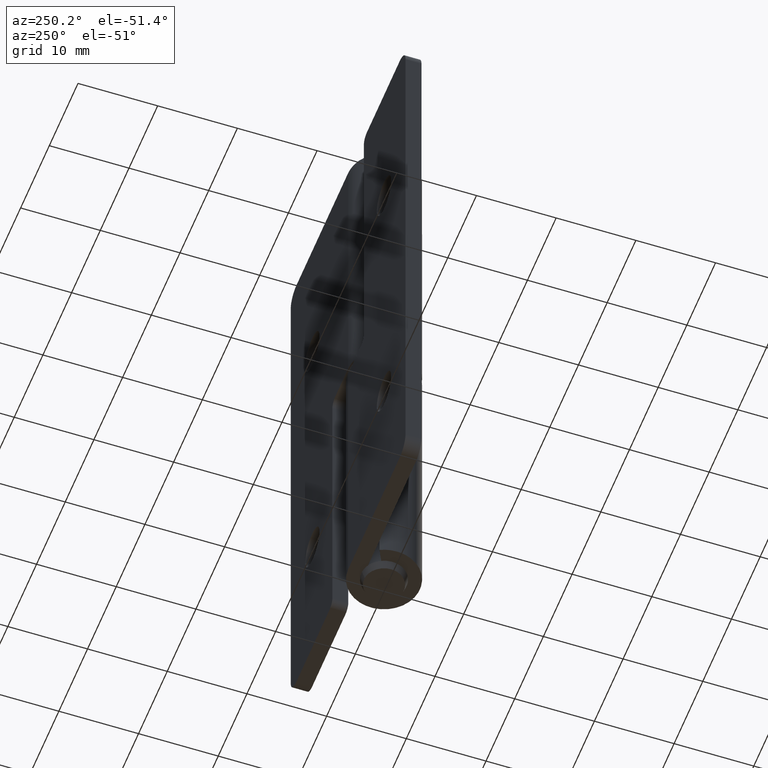
[diagram: clean part render]
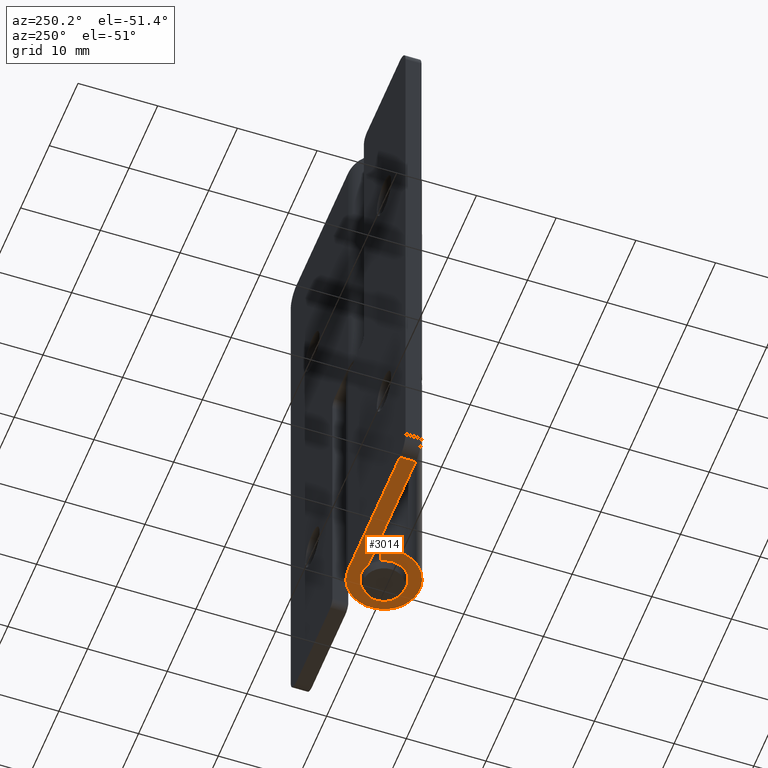
[diagram: same view with one face highlighted and labeled with its STEP entity id]
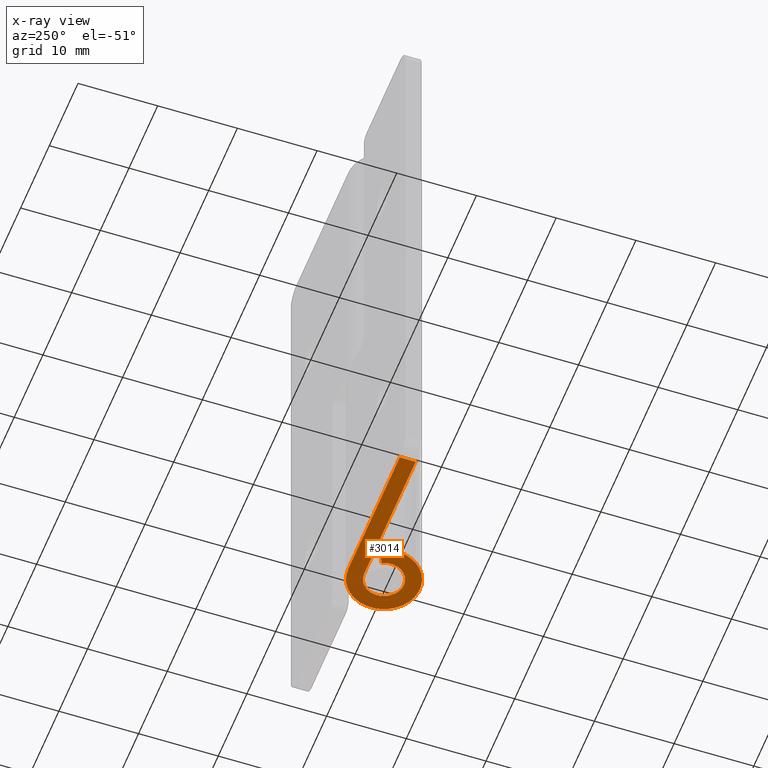
[diagram: x-ray of the same camera — body ghosted, the highlighted face saturated]
A machine part, auxiliary view. The second image highlights one B-rep face of the part: STEP entity #3014.
The next image is the same camera in x-ray: the body ghosted, the highlighted face saturated — about 0% of this face is hidden behind the body in this view.
In plain terms, the highlighted face is a freeform B-spline surface patch.
Its self-contained STEP definition (entity closure, byte-faithful):
#2577=CARTESIAN_POINT('',(-3.115169E-011,4.500000000000060,0.0));
#2578=VERTEX_POINT('',#2577);
#2584=CARTESIAN_POINT('',(-18.000000000031150,4.499999999994159,0.0));
#2585=VERTEX_POINT('',#2584);
#2586=CARTESIAN_POINT('',(-3.115169E-011,4.500000000000060,0.0));
#2587=CARTESIAN_POINT('',(-18.000000000031150,4.499999999994159,0.0));
#2588=QUASI_UNIFORM_CURVE('',1,(#2586,#2587),.UNSPECIFIED.,.F.,.U.);
#2589=EDGE_CURVE('',#2578,#2585,#2588,.T.);
#2791=CARTESIAN_POINT('',(-18.000000000024752,2.499999999941865,0.0));
#2792=VERTEX_POINT('',#2791);
#2793=CARTESIAN_POINT('',(-18.000000000024752,2.499999999941865,0.0));
#2794=CARTESIAN_POINT('',(-18.000000000031150,4.499999999994159,0.0));
#2795=QUASI_UNIFORM_CURVE('',1,(#2793,#2794),.UNSPECIFIED.,.F.,.U.);
#2796=EDGE_CURVE('',#2792,#2585,#2795,.T.);
#2928=CARTESIAN_POINT('',(-19.123874113145590,-4.949484158612932,0.0));
#2929=CARTESIAN_POINT('',(5.623857834121212,-4.949484158612932,0.0));
#2930=CARTESIAN_POINT('',(-19.123874113145590,4.949547092386588,0.0));
#2931=CARTESIAN_POINT('',(5.623857834121212,4.949547092386588,0.0));
#2932=B_SPLINE_SURFACE_WITH_KNOTS('',1,1,((#2928,#2930),(#2929,#2931)),.UNSPECIFIED.,.F.,.F.,.U.,(2,2),(2,2),(0.0,24.747731947266811),(0.0,9.899031250999521),.UNSPECIFIED.);
#2933=CARTESIAN_POINT('',(-2.491163E-011,2.500000000000075,0.0));
#2934=VERTEX_POINT('',#2933);
#2935=CARTESIAN_POINT('',(-18.000000000024752,2.499999999941865,0.0));
#2936=CARTESIAN_POINT('',(-2.491163E-011,2.500000000000075,0.0));
#2937=QUASI_UNIFORM_CURVE('',1,(#2935,#2936),.UNSPECIFIED.,.F.,.U.);
#2938=EDGE_CURVE('',#2792,#2934,#2937,.T.);
#2939=ORIENTED_EDGE('',*,*,#2938,.F.);
#2940=ORIENTED_EDGE('',*,*,#2796,.T.);
#2941=ORIENTED_EDGE('',*,*,#2589,.F.);
#2942=CARTESIAN_POINT('',(-4.031128874172655,1.999999999986900,0.0));
#2943=VERTEX_POINT('',#2942);
#2944=CARTESIAN_POINT('',(-3.115169E-011,4.500000000000060,0.0));
#2945=CARTESIAN_POINT('',(0.242467662085181,4.500011012660295,0.0));
#2946=CARTESIAN_POINT('',(0.757743461527956,4.458275352194862,0.0));
#2947=CARTESIAN_POINT('',(1.420806516539395,4.287132903764576,0.0));
#2948=CARTESIAN_POINT('',(2.106136790064912,3.998137125022928,0.0));
#2949=CARTESIAN_POINT('',(2.701400612902546,3.628503069355748,0.0));
#2950=CARTESIAN_POINT('',(3.311628580784364,3.079643314026739,0.0));
#2951=CARTESIAN_POINT('',(3.754044527466332,2.517223621768803,0.0));
#2952=CARTESIAN_POINT('',(4.136053835076022,1.826004661415456,0.0));
#2953=CARTESIAN_POINT('',(4.388765576510497,1.107531024632267,0.0));
#2954=CARTESIAN_POINT('',(4.505625739479836,0.340624640913647,0.0));
#2955=CARTESIAN_POINT('',(4.501440131049301,-0.449421665427243,0.0));
#2956=CARTESIAN_POINT('',(4.341375575137127,-1.318758566845548,0.0));
#2957=CARTESIAN_POINT('',(3.945132709154171,-2.244557548913360,0.0));
#2958=CARTESIAN_POINT('',(3.305745776586506,-3.118308956496185,0.0));
#2959=CARTESIAN_POINT('',(2.543626651526900,-3.755783373612471,0.0));
#2960=CARTESIAN_POINT('',(1.666283319116001,-4.211717265103769,0.0));
#2961=CARTESIAN_POINT('',(0.846187183754874,-4.449619037017613,0.0));
#2962=CARTESIAN_POINT('',(-0.154126288680774,-4.535251867695420,0.0));
#2963=CARTESIAN_POINT('',(-1.154227573525186,-4.397418152519082,0.0));
#2964=CARTESIAN_POINT('',(-2.115440992979691,-4.008376082320058,0.0));
#2965=CARTESIAN_POINT('',(-2.898954194674774,-3.481924601904446,0.0));
#2966=CARTESIAN_POINT('',(-3.593658187351620,-2.775696040897544,0.0));
#2967=CARTESIAN_POINT('',(-4.131973189823101,-1.887276941452556,0.0));
#2968=CARTESIAN_POINT('',(-4.436327650903636,-0.927954508095639,0.0));
#2969=CARTESIAN_POINT('',(-4.532282497225771,0.026422157626195,0.0));
#2970=CARTESIAN_POINT('',(-4.426488103987710,1.011942384028578,0.0));
#2971=CARTESIAN_POINT('',(-4.192853736485836,1.674204847243373,0.0));
#2972=CARTESIAN_POINT('',(-4.031128874172655,1.999999999986900,0.0));
#2973=B_SPLINE_CURVE_WITH_KNOTS('',3,(#2944,#2945,#2946,#2947,#2948,#2949,#2950,#2951,#2952,#2953,#2954,#2955,#2956,#2957,#2958,#2959,#2960,#2961,#2962,#2963,#2964,#2965,#2966,#2967,#2968,#2969,#2970,#2971,#2972),.UNSPECIFIED.,.F.,.U.,(4,1,1,1,1,1,1,1,1,1,1,1,1,1,1,1,1,1,1,1,1,1,1,1,1,1,4),(0.000000371167509,0.727407738094090,1.545828306880420,2.045934228842810,2.955260493963294,3.637252559762516,4.501089919527395,5.092151789645438,6.001403782606559,6.774358088435193,7.410860481444496,8.365649352529589,9.411365325425454,10.411613528465571,11.593747744769070,12.366608824785160,13.366841943972410,14.139768931435411,15.367345887126801,16.367590960154320,17.231458102187599,18.186193889512541,19.322836241028892,20.323083923822129,21.186930951431290,22.187176023440859,23.278342379592221),.UNSPECIFIED.);
#2974=EDGE_CURVE('',#2578,#2943,#2973,.T.);
#2975=ORIENTED_EDGE('',*,*,#2974,.T.);
#2976=CARTESIAN_POINT('',(-2.239516041214535,1.111111111103914,0.0));
#2977=VERTEX_POINT('',#2976);
#2978=CARTESIAN_POINT('',(-2.239516041214535,1.111111111103914,0.0));
#2979=CARTESIAN_POINT('',(-4.031128874172655,1.999999999986900,0.0));
#2980=QUASI_UNIFORM_CURVE('',1,(#2978,#2979),.UNSPECIFIED.,.F.,.U.);
#2981=EDGE_CURVE('',#2977,#2943,#2980,.T.);
#2982=ORIENTED_EDGE('',*,*,#2981,.F.);
#2983=CARTESIAN_POINT('',(-2.491163E-011,2.500000000000075,0.0));
#2984=CARTESIAN_POINT('',(0.319989658641525,2.500308341894099,0.0));
#2985=CARTESIAN_POINT('',(0.808067264582563,2.404952418155411,0.0));
#2986=CARTESIAN_POINT('',(1.332109745669958,2.128665244653801,0.0));
#2987=CARTESIAN_POINT('',(1.682201157987785,1.864405769539111,0.0));
#2988=CARTESIAN_POINT('',(1.962778118910932,1.570676428175734,0.0));
#2989=CARTESIAN_POINT('',(2.268701223502454,1.104584748021082,0.0));
#2990=CARTESIAN_POINT('',(2.466334870088323,0.560270179402369,0.0));
#2991=CARTESIAN_POINT('',(2.518376348434521,-0.047472590576219,0.0));
#2992=CARTESIAN_POINT('',(2.443681460591479,-0.635153346539001,0.0));
#2993=CARTESIAN_POINT('',(2.222791693732016,-1.206211570513214,0.0));
#2994=CARTESIAN_POINT('',(1.882148417483374,-1.671640390756258,0.0));
#2995=CARTESIAN_POINT('',(1.531833397008682,-1.989500553361884,0.0));
#2996=CARTESIAN_POINT('',(1.134974834244684,-2.246902066288806,0.0));
#2997=CARTESIAN_POINT('',(0.582187408483915,-2.463509153217046,0.0));
#2998=CARTESIAN_POINT('',(-0.061818619010682,-2.528421247259660,0.0));
#2999=CARTESIAN_POINT('',(-0.663779223811063,-2.429795287817492,0.0));
#3000=CARTESIAN_POINT('',(-1.120607798518759,-2.250284362921641,0.0));
#3001=CARTESIAN_POINT('',(-1.579750730372843,-1.964891551721949,0.0));
#3002=CARTESIAN_POINT('',(-1.991457504530337,-1.558829990713069,0.0));
#3003=CARTESIAN_POINT('',(-2.291321954086384,-1.046413448551118,0.0));
#3004=CARTESIAN_POINT('',(-2.439060634963018,-0.596594966201494,0.0));
#3005=CARTESIAN_POINT('',(-2.507150904832518,-0.162990509200545,0.0));
#3006=CARTESIAN_POINT('',(-2.498013508739861,0.412407889357047,0.0));
#3007=CARTESIAN_POINT('',(-2.366931053165393,0.854743414436030,0.0));
#3008=CARTESIAN_POINT('',(-2.239516041214535,1.111111111103914,0.0));
#3009=B_SPLINE_CURVE_WITH_KNOTS('',3,(#2983,#2984,#2985,#2986,#2987,#2988,#2989,#2990,#2991,#2992,#2993,#2994,#2995,#2996,#2997,#2998,#2999,#3000,#3001,#3002,#3003,#3004,#3005,#3006,#3007,#3008),.UNSPECIFIED.,.F.,.U.,(4,1,1,1,1,1,1,1,1,1,1,1,1,1,1,1,1,1,1,1,1,1,1,4),(0.000000192404073,0.959820342445880,1.465015098169973,1.768131788343249,2.273327298661529,2.677478931575449,3.435185459173338,3.990890064806875,4.496078906530363,5.203354350616414,5.809561174632110,6.213734820926343,6.617818265281581,7.224034380239399,7.981822384182507,8.537534541617214,9.042705490074905,9.446879136361288,10.154059114478690,10.760307278982619,11.214966699607309,11.568600326744090,12.073799547178099,12.932577417131069),.UNSPECIFIED.);
#3010=EDGE_CURVE('',#2934,#2977,#3009,.T.);
#3011=ORIENTED_EDGE('',*,*,#3010,.F.);
#3012=EDGE_LOOP('',(#2939,#2940,#2941,#2975,#2982,#3011));
#3013=FACE_OUTER_BOUND('',#3012,.T.);
#3014=ADVANCED_FACE('',(#3013),#2932,.F.);